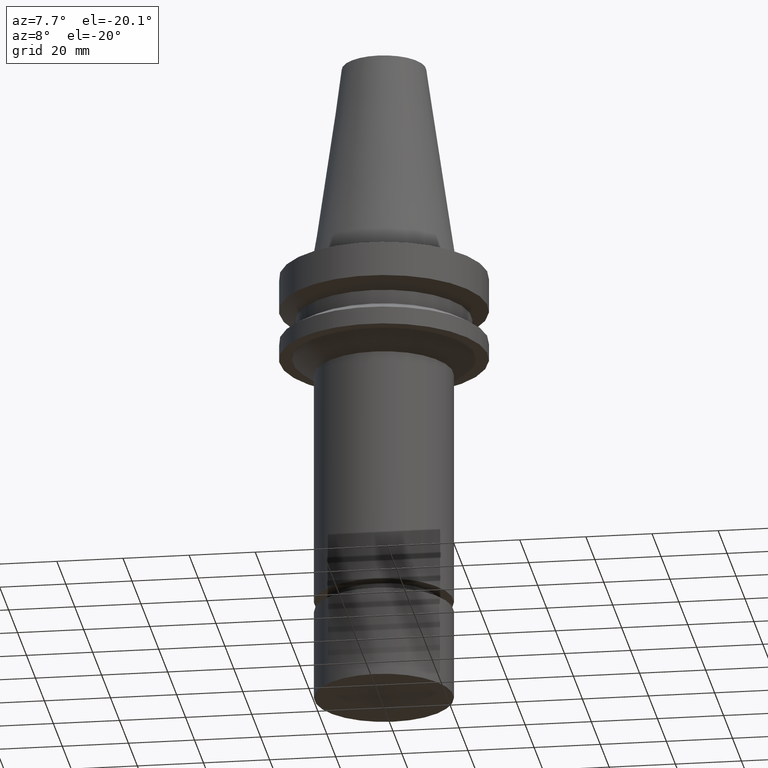
[diagram: clean part render]
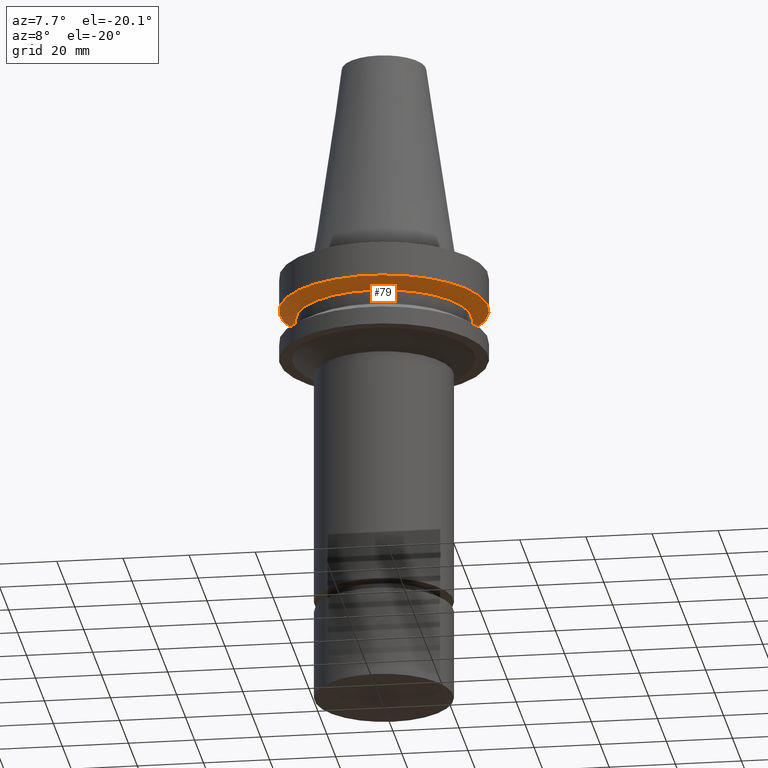
[diagram: same view with one face highlighted and labeled with its STEP entity id]
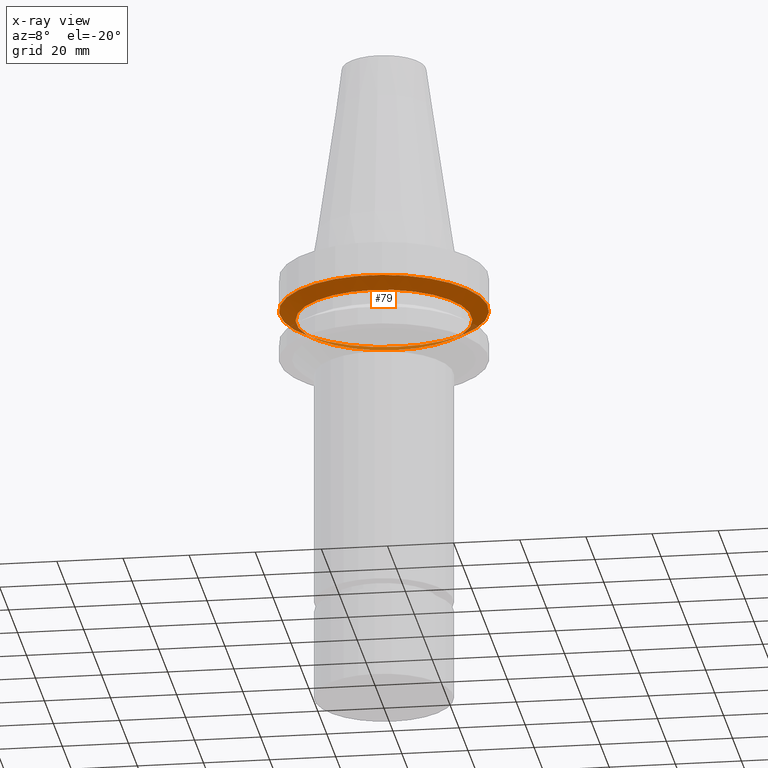
[diagram: x-ray of the same camera — body ghosted, the highlighted face saturated]
A machine part, auxiliary view. The second image highlights one B-rep face of the part: STEP entity #79.
The next image is the same camera in x-ray: the body ghosted, the highlighted face saturated — about 11% of this face is hidden behind the body in this view.
In plain terms, the highlighted conical surface has half-angle 60 deg.
Its self-contained STEP definition (entity closure, byte-faithful):
#79=ADVANCED_FACE('Unnamed[1]',(#207,#208),#209,.T.);
#81=EDGE_CURVE('Unnamed[1]',#211,#211,#212,.T.);
#99=EDGE_CURVE('Unnamed[1]',#238,#238,#239,.T.);
#207=FACE_BOUND('',#384,.T.);
#208=FACE_BOUND('',#385,.T.);
#209=CONICAL_SURFACE('',#386,28.9999999999999,1.04719755119657);
#211=VERTEX_POINT('',#389);
#212=CIRCLE('',#390,26.4999999999994);
#238=VERTEX_POINT('',#422);
#239=CIRCLE('',#423,31.5000000000003);
#384=EDGE_LOOP('',(#587));
#385=EDGE_LOOP('',(#588));
#386=AXIS2_PLACEMENT_3D('',#589,#590,#591);
#389=CARTESIAN_POINT('',(8.8494551369045E-016,26.4999999999995,-14.4522569986152));
#390=AXIS2_PLACEMENT_3D('',#592,#593,#594);
#422=CARTESIAN_POINT('',(7.08182973902924E-016,31.5000000000004,-11.5655056526664));
#423=AXIS2_PLACEMENT_3D('',#620,#621,#622);
#587=ORIENTED_EDGE('',*,*,#81,.F.);
#588=ORIENTED_EDGE('',*,*,#99,.T.);
#589=CARTESIAN_POINT('',(7.96564243796687E-016,6.97397974048175E-014,-13.0088813256408));
#590=DIRECTION('',(-6.12323399573676E-017,9.35480732738688E-017,1.0));
#591=DIRECTION('',(9.0101469429108E-034,1.0,-9.35480732738688E-017));
#592=CARTESIAN_POINT('',(8.8494551369045E-016,6.96047723916004E-014,-14.4522569986152));
#593=DIRECTION('',(6.12323399573677E-017,-9.35480732738494E-017,-1.0));
#594=DIRECTION('',(9.0101469429413E-034,1.0,-9.35480732738494E-017));
#620=CARTESIAN_POINT('',(7.08182973902924E-016,6.98748224180346E-014,-11.5655056526664));
#621=DIRECTION('',(6.12323399573677E-017,-9.35480732737825E-017,-1.0));
#622=DIRECTION('',(9.01014694294208E-034,1.0,-9.35480732737825E-017));